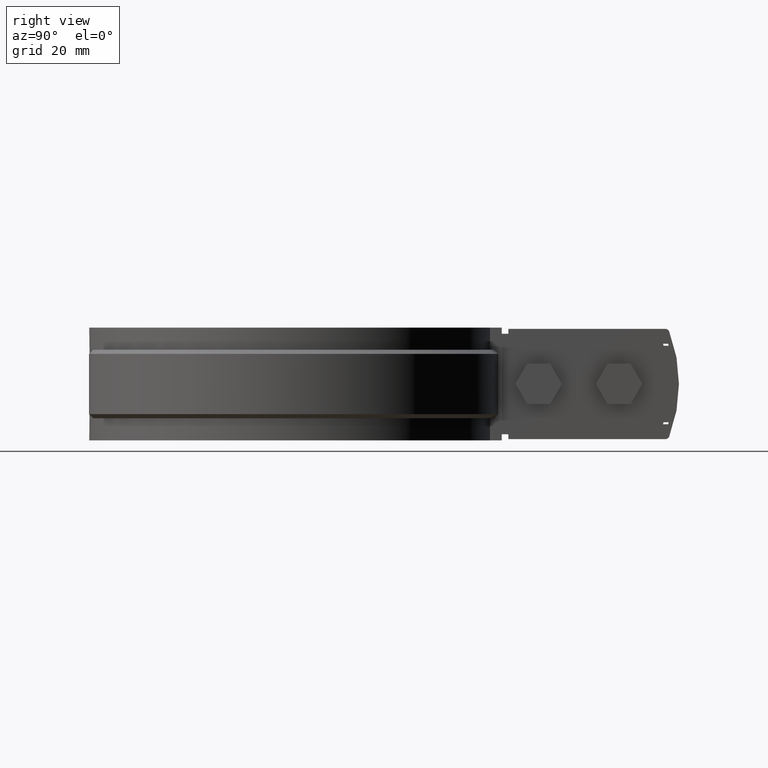
[diagram: clean part render]
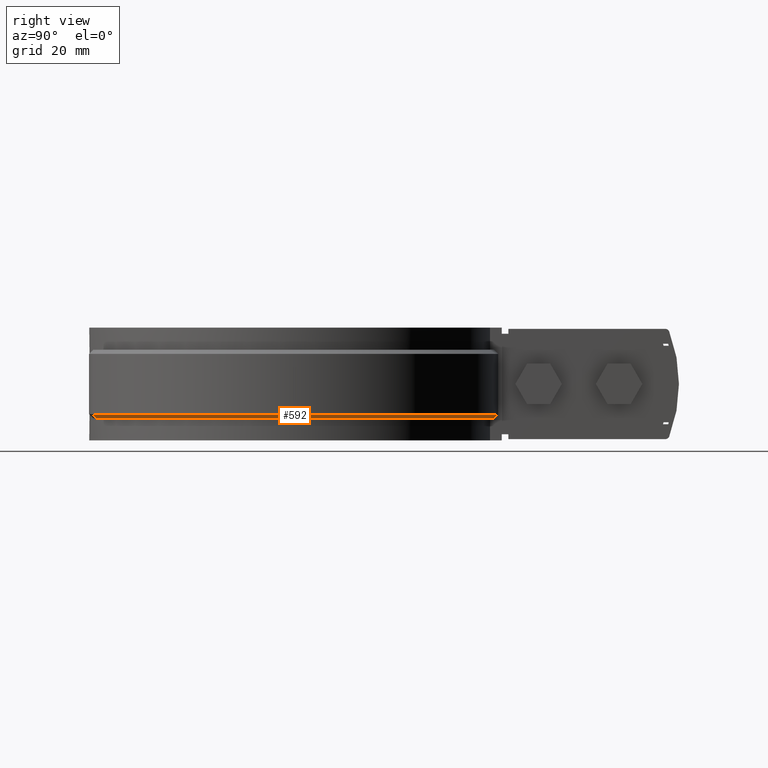
[diagram: same view with one face highlighted and labeled with its STEP entity id]
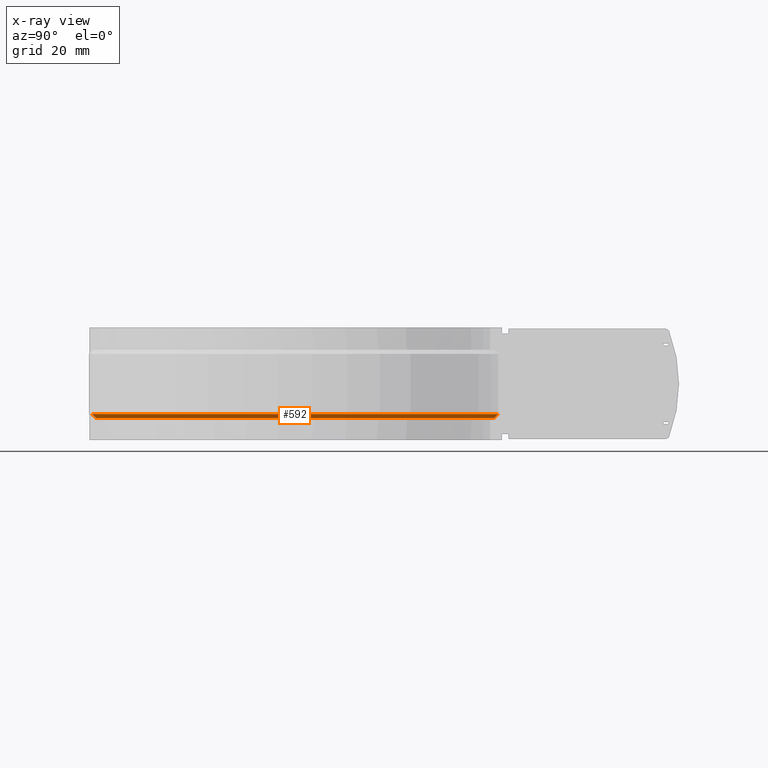
[diagram: x-ray of the same camera — body ghosted, the highlighted face saturated]
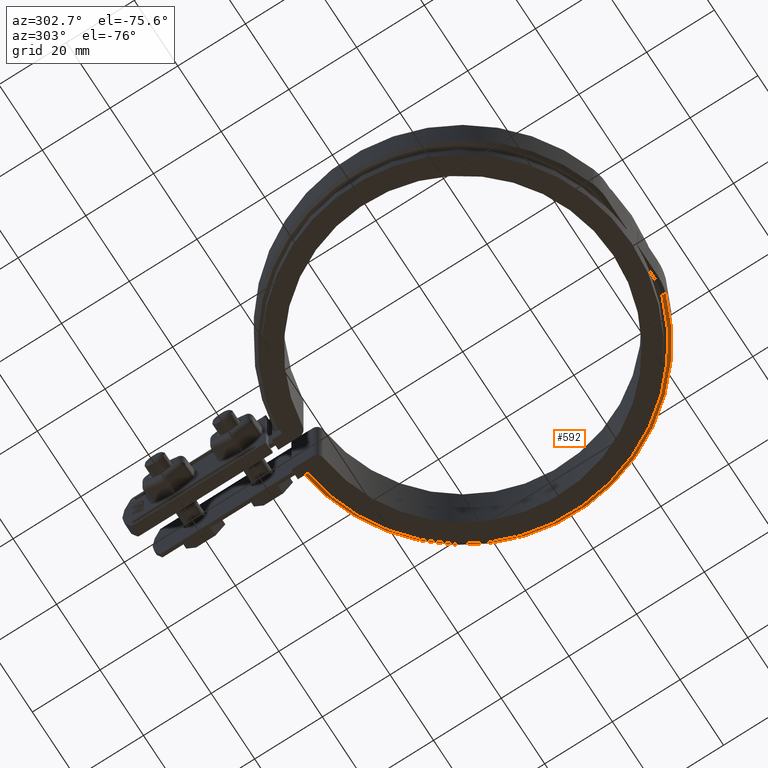
[diagram: same view with one face highlighted and labeled with its STEP entity id]
A machine part, right view. The second image highlights one B-rep face of the part: STEP entity #592.
The next image is the same camera in x-ray: the body ghosted, the highlighted face saturated — about 0% of this face is hidden behind the body in this view.
A second angle (auxiliary view) of the same face is appended — the face is thin or edge-on in the first view.
In plain terms, the highlighted conical surface has half-angle 45 deg.
Its self-contained STEP definition (entity closure, byte-faithful):
#592 = ADVANCED_FACE( '', ( #1116 ), #1117, .T. );
#1116 = FACE_OUTER_BOUND( '', #2484, .T. );
#1117 = CONICAL_SURFACE( '', #2485, 51.0000000000000, 0.785398163397448 );
#2484 = EDGE_LOOP( '', ( #5555, #5556, #5557, #5558 ) );
#2485 = AXIS2_PLACEMENT_3D( '', #5559, #5560, #5561 );
#5555 = ORIENTED_EDGE( '', *, *, #7954, .F. );
#5556 = ORIENTED_EDGE( '', *, *, #7978, .F. );
#5557 = ORIENTED_EDGE( '', *, *, #7975, .F. );
#5558 = ORIENTED_EDGE( '', *, *, #7979, .F. );
#5559 = CARTESIAN_POINT( '', ( 0.000000000000000, 6.93889390390723E-015, -8.50000000000000 ) );
#5560 = DIRECTION( '', ( 0.000000000000000, 0.000000000000000, 1.00000000000000 ) );
#5561 = DIRECTION( '', ( 1.00000000000000, 0.000000000000000, 0.000000000000000 ) );
#7954 = EDGE_CURVE( '', #9246, #9239, #9248, .T. );
#7975 = EDGE_CURVE( '', #9274, #9275, #9276, .T. );
#7978 = EDGE_CURVE( '', #9275, #9246, #9279, .T. );
#7979 = EDGE_CURVE( '', #9239, #9274, #9280, .F. );
#9239 = VERTEX_POINT( '', #13112 );
#9246 = VERTEX_POINT( '', #13125 );
#9248 = B_SPLINE_CURVE_WITH_KNOTS( '', 3, ( #13128, #13129, #13130, #13131 ), .UNSPECIFIED., .F., .F., ( 4, 4 ), ( 0.000000000000000, 0.00141907064164826 ), .UNSPECIFIED. );
#9274 = VERTEX_POINT( '', #13173 );
#9275 = VERTEX_POINT( '', #13174 );
#9276 = LINE( '', #13175, #13176 );
#9279 = CIRCLE( '', #13179, 52.0000000000000 );
#9280 = CIRCLE( '', #13180, 51.0000000000000 );
#13112 = CARTESIAN_POINT( '', ( 6.00000000000001, 50.6458290484024, -8.50000000000000 ) );
#13125 = CARTESIAN_POINT( '', ( 6.00000000000001, 51.6526862805798, -7.50000000000000 ) );
#13128 = CARTESIAN_POINT( '', ( 6.00000000000001, 51.6526862805798, -7.50000000000000 ) );
#13129 = CARTESIAN_POINT( '', ( 6.00000000000001, 51.3170892556212, -7.83335553551698 ) );
#13130 = CARTESIAN_POINT( '', ( 6.00000000000001, 50.9814706121009, -8.16668930869391 ) );
#13131 = CARTESIAN_POINT( '', ( 6.00000000000001, 50.6458290484024, -8.49999999999999 ) );
#13173 = CARTESIAN_POINT( '', ( 16.3381451583999, -48.3121621621621, -8.50000000000000 ) );
#13174 = CARTESIAN_POINT( '', ( 16.6585009458195, -49.2594594594595, -7.50000000000000 ) );
#13175 = CARTESIAN_POINT( '', ( 16.3381451583999, -48.3121621621621, -8.50000000000000 ) );
#13176 = VECTOR( '', #15122, 1000.00000000000 );
#13179 = AXIS2_PLACEMENT_3D( '', #15129, #15130, #15131 );
#13180 = AXIS2_PLACEMENT_3D( '', #15132, #15133, #15134 );
#15122 = DIRECTION( '', ( 0.226525749676757, -0.669840342718608, 0.707106781186548 ) );
#15129 = CARTESIAN_POINT( '', ( 0.000000000000000, 6.93889390390723E-015, -7.50000000000000 ) );
#15130 = DIRECTION( '', ( 0.000000000000000, 0.000000000000000, 1.00000000000000 ) );
#15131 = DIRECTION( '', ( 1.00000000000000, 0.000000000000000, 0.000000000000000 ) );
#15132 = CARTESIAN_POINT( '', ( 0.000000000000000, 6.93889390390723E-015, -8.50000000000000 ) );
#15133 = DIRECTION( '', ( 0.000000000000000, 0.000000000000000, 1.00000000000000 ) );
#15134 = DIRECTION( '', ( 1.00000000000000, 0.000000000000000, 0.000000000000000 ) );